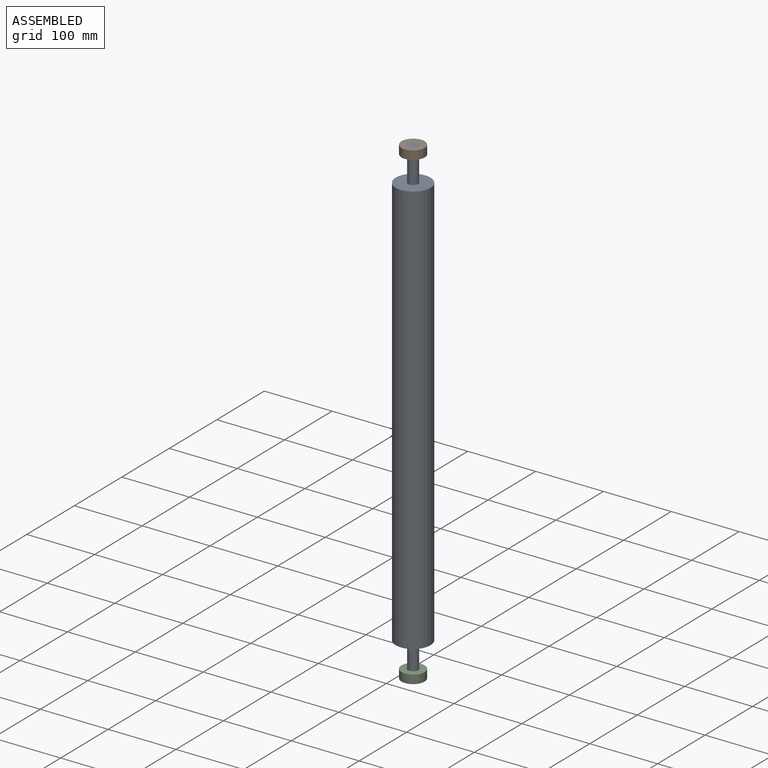
[diagram: assembled view]
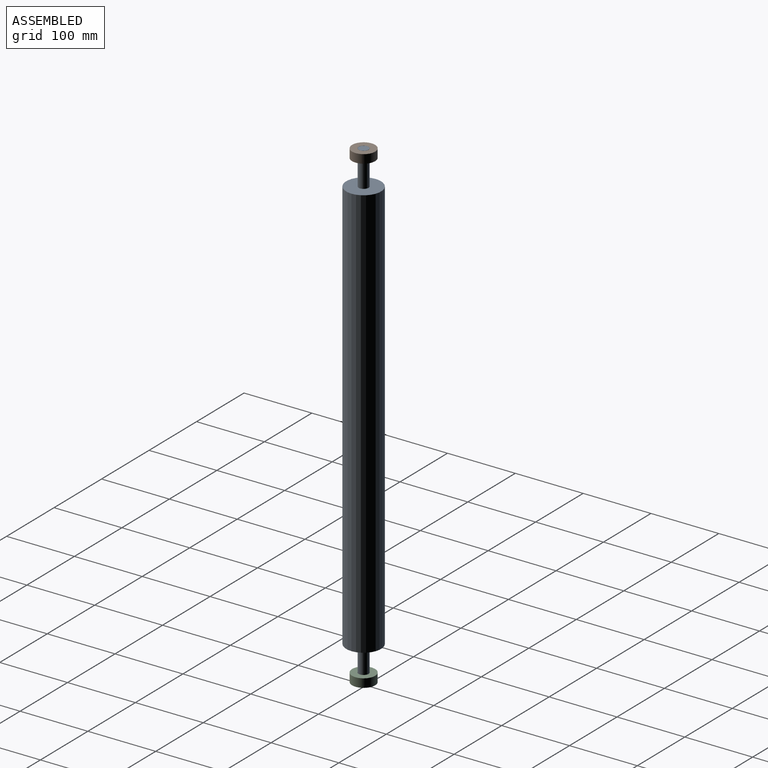
[diagram: assembled view, second angle]
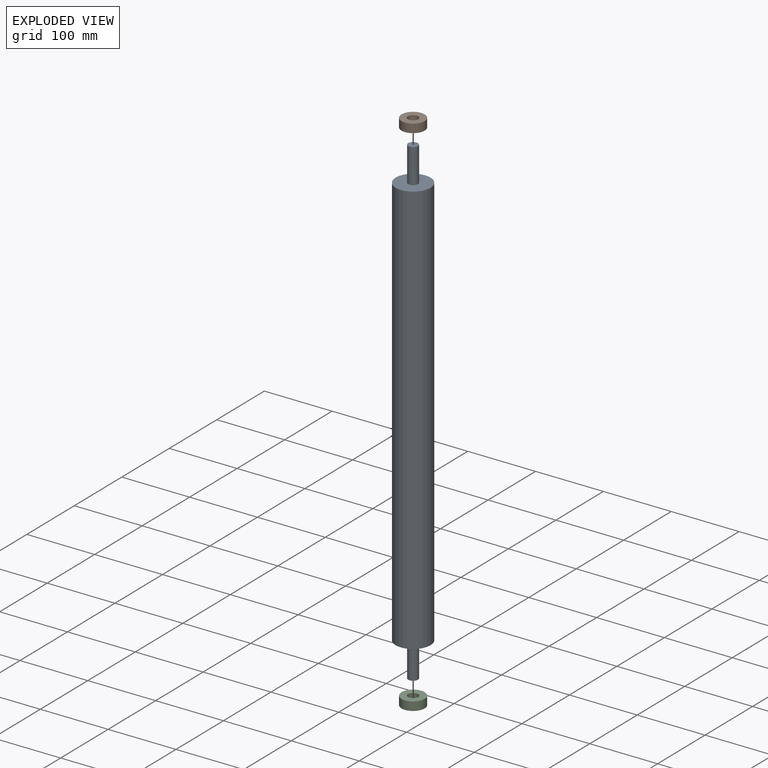
[diagram: exploded view]
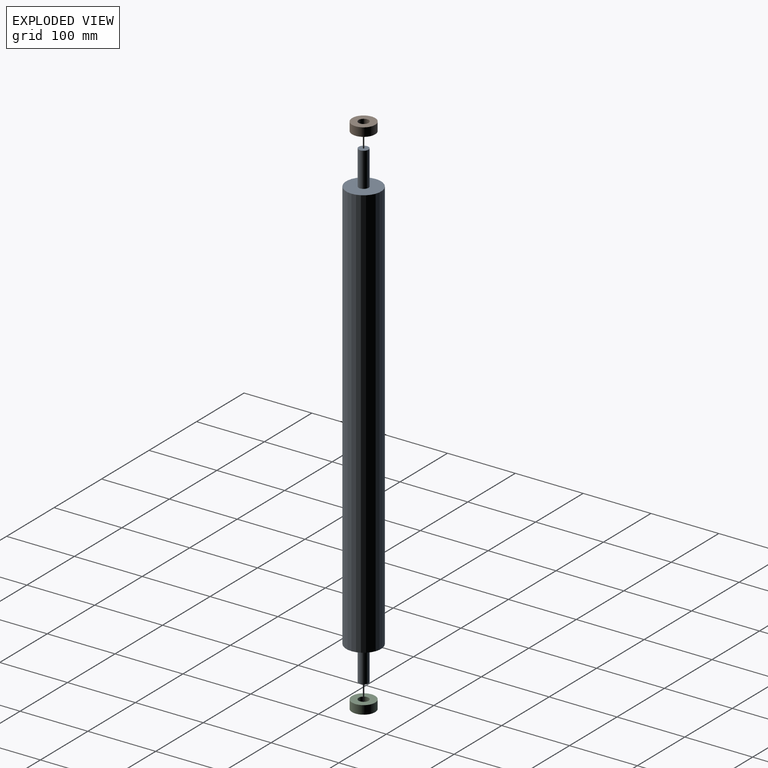
[diagram: exploded view, second angle]
ASSEMBLY  parts=3 mates=2
PART A: 7 faces, bbox 51.4x51.4x711.2 mm
  f0: cylinder r=25.69mm len=609.6mm, axis (0,0,1), area 98406.4mm2, adj f1,f2
  f1: plane 51.38x51.38mm, normal (0,0,1), area 1906.5mm2, adj f0,f3
  f2: plane 51.38x51.38mm, normal (0,0,-1), area 1906.5mm2, adj f0,f5
  f3: cylinder r=7.29mm len=50.8mm, axis (0,0,-1), area 2328.3mm2, adj f1,f4
  f4: plane 14.59x14.59mm, normal (0,0,1), area 167.2mm2, adj f3
  f5: cylinder r=7.29mm len=50.8mm, axis (0,0,1), area 2328.3mm2, adj f2,f6
  f6: plane 14.59x14.59mm, normal (0,0,-1), area 167.2mm2, adj f5
PART B: 4 faces, bbox 34x34x12.7 mm
  f0: cylinder r=7.47mm len=14.94mm, axis (0,0,1), area 595.9mm2, adj f2,f3
  f1: cylinder r=17mm len=33.99mm, axis (0,0,1), area 1356.2mm2, adj f2,f3
  f2: plane 33.99x33.99mm, normal (0,0,1), area 732.3mm2, adj f0,f1
  f3: plane 33.99x33.99mm, normal (0,0,-1), area 732.3mm2, adj f0,f1
PART C: same geometry as B
PLACE A t=(-24.82,49.19,-55.09)mm
PLACE B t=(-24.82,49.19,592.61)mm
PLACE C t=(-24.82,49.19,-105.89)mm
MATE revolute A.f3 <-> B.f0  axis (0,0,-1) through (-24.82,49.19,605.31)mm
MATE revolute A.f3 <-> C.f0  axis (0,0,1) through (-24.82,49.19,-105.89)mm
